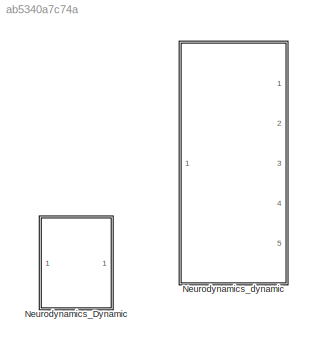
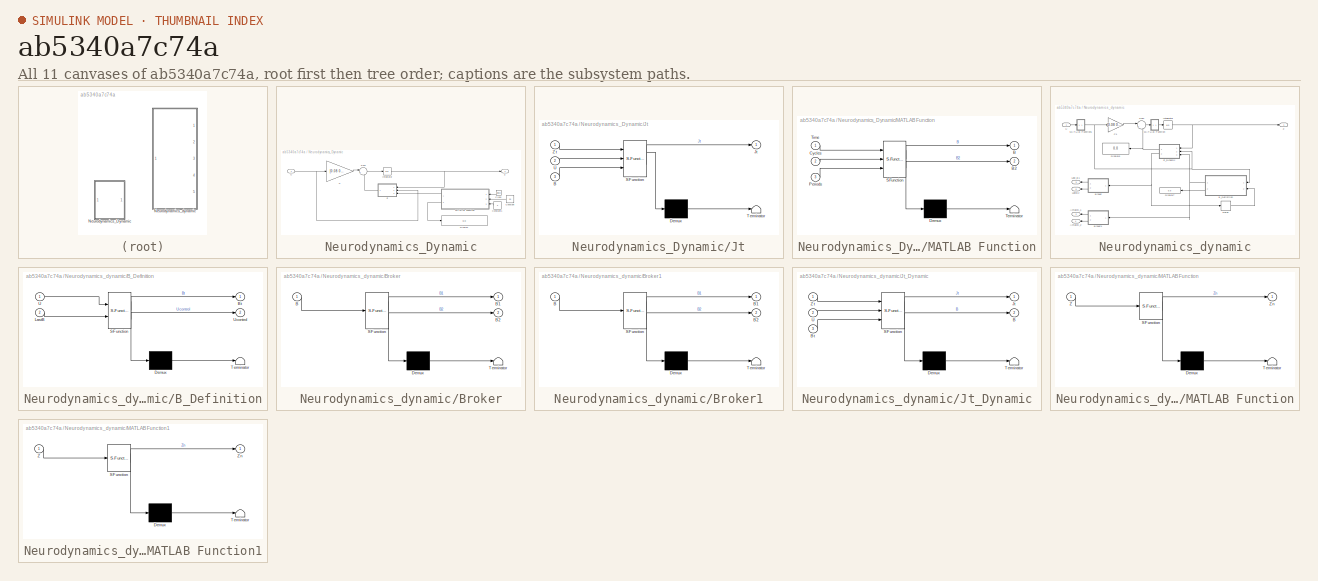
[diagram: thumbnail index - all 11 canvases of the model, root first then tree order]
MODEL slx_ab5340a7c74a
KIND model
CONFIG AbsTol = auto
CONFIG EnableMultiTasking = off
CONFIG FixedStep = auto
CONFIG MaxStep = auto
CONFIG MinStep = auto
CONFIG RelTol = 1e-3
CONFIG SampleTimeConstraint = Unconstrained
CONFIG SolverName = VariableStepAuto
CONFIG StartTime = 0.0
CONFIG StopTime = 10.0
BLOCK [SubSystem] Neurodynamics_Dynamic
  Commented = on
  Ports = [1, 1]
  RequestExecContextInheritance = off
BLOCK [Gain] Neurodynamics_Dynamic/C
  Gain = [0.08 0;0.06 0]
  Multiplication = Matrix(K*u) (u vector)
BLOCK [Clock] Neurodynamics_Dynamic/Clock
BLOCK [Constant] Neurodynamics_Dynamic/Constant
  Value = 30
BLOCK [Constant] Neurodynamics_Dynamic/Constant1
  Value = 2
BLOCK [Display] Neurodynamics_Dynamic/Display
  Decimation = 1
  Ports = [1]
BLOCK [Integrator] Neurodynamics_Dynamic/Integrator
  Ports = [1, 1]
BLOCK [SubSystem] Neurodynamics_Dynamic/Jt
  ErrorFcn = Stateflow.Translate.translate
  PermitHierarchicalResolution = ExplicitOnly
  Ports = [3, 1]
  RequestExecContextInheritance = off
  SFBlockType = MATLAB Function
  TreatAsAtomicUnit = on
BLOCK [Demux] Neurodynamics_Dynamic/Jt/ Demux 
  Outputs = 1
  Ports = [1, 1]
BLOCK [S-Function] Neurodynamics_Dynamic/Jt/ SFunction 
  EnableBusSupport = on
  FunctionName = sf_sfun
  PortCounts = [3 2]
  Ports = [3, 2]
  SFcnIsStateOwnerBlock = off
  SFunctionDeploymentMode = off
  Tag = Stateflow S-Function 13
BLOCK [Terminator] Neurodynamics_Dynamic/Jt/ Terminator 
BLOCK [Inport] Neurodynamics_Dynamic/Jt/B
  Port = 3
BLOCK [Outport] Neurodynamics_Dynamic/Jt/Jt
BLOCK [Inport] Neurodynamics_Dynamic/Jt/U
  Port = 2
BLOCK [Inport] Neurodynamics_Dynamic/Jt/Zt
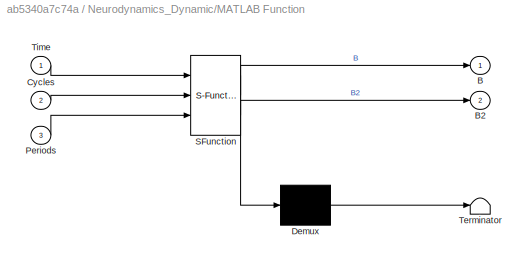
BLOCK [SubSystem] Neurodynamics_Dynamic/MATLAB Function
  ErrorFcn = Stateflow.Translate.translate
  PermitHierarchicalResolution = ExplicitOnly
  Ports = [3, 2]
  RequestExecContextInheritance = off
  SFBlockType = MATLAB Function
  TreatAsAtomicUnit = on
BLOCK [Demux] Neurodynamics_Dynamic/MATLAB Function/ Demux 
  Outputs = 1
  Ports = [1, 1]
BLOCK [S-Function] Neurodynamics_Dynamic/MATLAB Function/ SFunction 
  EnableBusSupport = on
  FunctionName = sf_sfun
  PortCounts = [3 3]
  Ports = [3, 3]
  SFcnIsStateOwnerBlock = off
  SFunctionDeploymentMode = off
  Tag = Stateflow S-Function 14
BLOCK [Terminator] Neurodynamics_Dynamic/MATLAB Function/ Terminator 
BLOCK [Outport] Neurodynamics_Dynamic/MATLAB Function/B
BLOCK [Outport] Neurodynamics_Dynamic/MATLAB Function/B2
  Port = 2
BLOCK [Inport] Neurodynamics_Dynamic/MATLAB Function/Cycles
  Port = 2
BLOCK [Inport] Neurodynamics_Dynamic/MATLAB Function/Periods
  Port = 3
BLOCK [Inport] Neurodynamics_Dynamic/MATLAB Function/Time
BLOCK [Sum] Neurodynamics_Dynamic/Sum
  Inputs = |++
  Ports = [2, 1]
BLOCK [Inport] Neurodynamics_Dynamic/U
BLOCK [Outport] Neurodynamics_Dynamic/Z
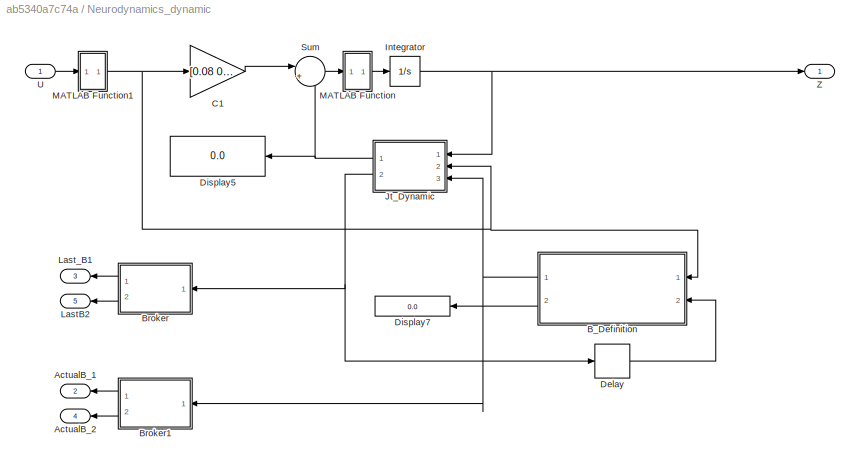
BLOCK [SubSystem] Neurodynamics_dynamic
  Commented = on
  Ports = [1, 5]
  RequestExecContextInheritance = off
BLOCK [Outport] Neurodynamics_dynamic/ActualB_1
  Port = 2
BLOCK [Outport] Neurodynamics_dynamic/ActualB_2
  Port = 4
BLOCK [SubSystem] Neurodynamics_dynamic/B_Definition
  ErrorFcn = Stateflow.Translate.translate
  PermitHierarchicalResolution = ExplicitOnly
  Ports = [2, 2]
  RequestExecContextInheritance = off
  SFBlockType = MATLAB Function
  TreatAsAtomicUnit = on
BLOCK [Demux] Neurodynamics_dynamic/B_Definition/ Demux 
  Outputs = 1
  Ports = [1, 1]
BLOCK [S-Function] Neurodynamics_dynamic/B_Definition/ SFunction 
  EnableBusSupport = on
  FunctionName = sf_sfun
  PortCounts = [2 3]
  Ports = [2, 3]
  SFcnIsStateOwnerBlock = off
  SFunctionDeploymentMode = off
  Tag = Stateflow S-Function 16
BLOCK [Terminator] Neurodynamics_dynamic/B_Definition/ Terminator 
BLOCK [Outport] Neurodynamics_dynamic/B_Definition/Bt
BLOCK [Inport] Neurodynamics_dynamic/B_Definition/LastB
  Port = 2
BLOCK [Inport] Neurodynamics_dynamic/B_Definition/U
BLOCK [Outport] Neurodynamics_dynamic/B_Definition/Ucontrol
  Port = 2
BLOCK [SubSystem] Neurodynamics_dynamic/Broker
  ErrorFcn = Stateflow.Translate.translate
  PermitHierarchicalResolution = ExplicitOnly
  Ports = [1, 2]
  RequestExecContextInheritance = off
  SFBlockType = MATLAB Function
  TreatAsAtomicUnit = on
BLOCK [Demux] Neurodynamics_dynamic/Broker/ Demux 
  Outputs = 1
  Ports = [1, 1]
BLOCK [S-Function] Neurodynamics_dynamic/Broker/ SFunction 
  EnableBusSupport = on
  FunctionName = sf_sfun
  PortCounts = [1 3]
  Ports = [1, 3]
  SFcnIsStateOwnerBlock = off
  SFunctionDeploymentMode = off
  Tag = Stateflow S-Function 17
BLOCK [Terminator] Neurodynamics_dynamic/Broker/ Terminator 
BLOCK [Inport] Neurodynamics_dynamic/Broker/B
BLOCK [Outport] Neurodynamics_dynamic/Broker/B1
BLOCK [Outport] Neurodynamics_dynamic/Broker/B2
  Port = 2
BLOCK [SubSystem] Neurodynamics_dynamic/Broker1
  ErrorFcn = Stateflow.Translate.translate
  PermitHierarchicalResolution = ExplicitOnly
  Ports = [1, 2]
  RequestExecContextInheritance = off
  SFBlockType = MATLAB Function
  TreatAsAtomicUnit = on
BLOCK [Demux] Neurodynamics_dynamic/Broker1/ Demux 
  Outputs = 1
  Ports = [1, 1]
BLOCK [S-Function] Neurodynamics_dynamic/Broker1/ SFunction 
  EnableBusSupport = on
  FunctionName = sf_sfun
  PortCounts = [1 3]
  Ports = [1, 3]
  SFcnIsStateOwnerBlock = off
  SFunctionDeploymentMode = off
  Tag = Stateflow S-Function 18
BLOCK [Terminator] Neurodynamics_dynamic/Broker1/ Terminator 
BLOCK [Inport] Neurodynamics_dynamic/Broker1/B
BLOCK [Outport] Neurodynamics_dynamic/Broker1/B1
BLOCK [Outport] Neurodynamics_dynamic/Broker1/B2
  Port = 2
BLOCK [Gain] Neurodynamics_dynamic/C1
  Gain = [0.08 0;0.06 0]
  Multiplication = Matrix(K*u) (u vector)
BLOCK [Delay] Neurodynamics_dynamic/Delay
  DelayLength = 1
  InitialCondition = 0
  InputPortMap = u0
  NameLocation = top
  Ports = [1, 1]
BLOCK [Display] Neurodynamics_dynamic/Display5
  Decimation = 1
  Ports = [1]
BLOCK [Display] Neurodynamics_dynamic/Display7
  Decimation = 1
  Ports = [1]
BLOCK [Integrator] Neurodynamics_dynamic/Integrator
  Ports = [1, 1]
BLOCK [SubSystem] Neurodynamics_dynamic/Jt_Dynamic
  ErrorFcn = Stateflow.Translate.translate
  PermitHierarchicalResolution = ExplicitOnly
  Ports = [3, 2]
  RequestExecContextInheritance = off
  SFBlockType = MATLAB Function
  TreatAsAtomicUnit = on
BLOCK [Demux] Neurodynamics_dynamic/Jt_Dynamic/ Demux 
  Outputs = 1
  Ports = [1, 1]
BLOCK [S-Function] Neurodynamics_dynamic/Jt_Dynamic/ SFunction 
  EnableBusSupport = on
  FunctionName = sf_sfun
  PortCounts = [3 3]
  Ports = [3, 3]
  SFcnIsStateOwnerBlock = off
  SFunctionDeploymentMode = off
  Tag = Stateflow S-Function 20
BLOCK [Terminator] Neurodynamics_dynamic/Jt_Dynamic/ Terminator 
BLOCK [Outport] Neurodynamics_dynamic/Jt_Dynamic/B
  Port = 2
BLOCK [Inport] Neurodynamics_dynamic/Jt_Dynamic/Bt
  Port = 3
BLOCK [Outport] Neurodynamics_dynamic/Jt_Dynamic/Jt
BLOCK [Inport] Neurodynamics_dynamic/Jt_Dynamic/U
  Port = 2
BLOCK [Inport] Neurodynamics_dynamic/Jt_Dynamic/Zt
BLOCK [Outport] Neurodynamics_dynamic/LastB2
  Port = 5
BLOCK [Outport] Neurodynamics_dynamic/Last_B1
  Port = 3
BLOCK [SubSystem] Neurodynamics_dynamic/MATLAB Function
  ErrorFcn = Stateflow.Translate.translate
  PermitHierarchicalResolution = ExplicitOnly
  Ports = [1, 1]
  RequestExecContextInheritance = off
  SFBlockType = MATLAB Function
  TreatAsAtomicUnit = on
BLOCK [Demux] Neurodynamics_dynamic/MATLAB Function/ Demux 
  Outputs = 1
  Ports = [1, 1]
BLOCK [S-Function] Neurodynamics_dynamic/MATLAB Function/ SFunction 
  EnableBusSupport = on
  FunctionName = sf_sfun
  PortCounts = [1 2]
  Ports = [1, 2]
  SFcnIsStateOwnerBlock = off
  SFunctionDeploymentMode = off
  Tag = Stateflow S-Function 21
BLOCK [Terminator] Neurodynamics_dynamic/MATLAB Function/ Terminator 
BLOCK [Inport] Neurodynamics_dynamic/MATLAB Function/Z
BLOCK [Outport] Neurodynamics_dynamic/MATLAB Function/Zn
BLOCK [SubSystem] Neurodynamics_dynamic/MATLAB Function1
  ErrorFcn = Stateflow.Translate.translate
  PermitHierarchicalResolution = ExplicitOnly
  Ports = [1, 1]
  RequestExecContextInheritance = off
  SFBlockType = MATLAB Function
  TreatAsAtomicUnit = on
BLOCK [Demux] Neurodynamics_dynamic/MATLAB Function1/ Demux 
  Outputs = 1
  Ports = [1, 1]
BLOCK [S-Function] Neurodynamics_dynamic/MATLAB Function1/ SFunction 
  EnableBusSupport = on
  FunctionName = sf_sfun
  PortCounts = [1 2]
  Ports = [1, 2]
  SFcnIsStateOwnerBlock = off
  SFunctionDeploymentMode = off
  Tag = Stateflow S-Function 22
BLOCK [Terminator] Neurodynamics_dynamic/MATLAB Function1/ Terminator 
BLOCK [Inport] Neurodynamics_dynamic/MATLAB Function1/Z
BLOCK [Outport] Neurodynamics_dynamic/MATLAB Function1/Zn
BLOCK [Sum] Neurodynamics_dynamic/Sum
  Inputs = |++
  Ports = [2, 1]
BLOCK [Inport] Neurodynamics_dynamic/U
BLOCK [Outport] Neurodynamics_dynamic/Z
LINE Neurodynamics_Dynamic/C:1 -> Neurodynamics_Dynamic/Sum:1
LINE Neurodynamics_Dynamic/Clock:1 -> Neurodynamics_Dynamic/MATLAB Function:1
LINE Neurodynamics_Dynamic/Constant1:1 -> Neurodynamics_Dynamic/MATLAB Function:3
LINE Neurodynamics_Dynamic/Constant:1 -> Neurodynamics_Dynamic/MATLAB Function:2
NET Neurodynamics_Dynamic/Integrator:1 -> Neurodynamics_Dynamic/Jt:1, Neurodynamics_Dynamic/Z:1
LINE Neurodynamics_Dynamic/Jt:1 -> Neurodynamics_Dynamic/Sum:2
LINE Neurodynamics_Dynamic/MATLAB Function:1 -> Neurodynamics_Dynamic/Jt:3
LINE Neurodynamics_Dynamic/MATLAB Function:2 -> Neurodynamics_Dynamic/Display:1
LINE Neurodynamics_Dynamic/Sum:1 -> Neurodynamics_Dynamic/Integrator:1
NET Neurodynamics_Dynamic/U:1 -> Neurodynamics_Dynamic/C:1, Neurodynamics_Dynamic/Jt:2
NET Neurodynamics_dynamic/B_Definition:1 -> Neurodynamics_dynamic/Broker1:1, Neurodynamics_dynamic/Jt_Dynamic:3
LINE Neurodynamics_dynamic/B_Definition:2 -> Neurodynamics_dynamic/Display7:1
LINE Neurodynamics_dynamic/Broker1:1 -> Neurodynamics_dynamic/ActualB_1:1
LINE Neurodynamics_dynamic/Broker1:2 -> Neurodynamics_dynamic/ActualB_2:1
LINE Neurodynamics_dynamic/Broker:1 -> Neurodynamics_dynamic/Last_B1:1
LINE Neurodynamics_dynamic/Broker:2 -> Neurodynamics_dynamic/LastB2:1
LINE Neurodynamics_dynamic/C1:1 -> Neurodynamics_dynamic/Sum:1
LINE Neurodynamics_dynamic/Delay:1 -> Neurodynamics_dynamic/B_Definition:2
NET Neurodynamics_dynamic/Integrator:1 -> Neurodynamics_dynamic/Jt_Dynamic:1, Neurodynamics_dynamic/Z:1
NET Neurodynamics_dynamic/Jt_Dynamic:1 -> Neurodynamics_dynamic/Display5:1, Neurodynamics_dynamic/Sum:2
NET Neurodynamics_dynamic/Jt_Dynamic:2 -> Neurodynamics_dynamic/Broker:1, Neurodynamics_dynamic/Delay:1
NET Neurodynamics_dynamic/MATLAB Function1:1 -> Neurodynamics_dynamic/B_Definition:1, Neurodynamics_dynamic/C1:1, Neurodynamics_dynamic/Jt_Dynamic:2
LINE Neurodynamics_dynamic/MATLAB Function:1 -> Neurodynamics_dynamic/Integrator:1
LINE Neurodynamics_dynamic/Sum:1 -> Neurodynamics_dynamic/MATLAB Function:1
LINE Neurodynamics_dynamic/U:1 -> Neurodynamics_dynamic/MATLAB Function1:1
note: NET lines group one-source signal fan-out (src -> all destinations, sorted); 1:1 wires keep LINE
CHART Neurodynamics_Dynamic/Jt states=1 transitions=1
  STATE_LABEL 'eML_blk_kernel()'
  STATE_LABEL 'SCRIPT:\nfunction Jt = fcn(Zt, U,B)\n   A = [-0.16 -0.49;-0.02 -0.33];\n   nRegions  = size(A,1);\n   M = size(U,1); %nStimuli\n   simulationLength = size(U,2);\n%    B = zeros(2,2,2);\n%    B1 = [0 0; 0 0]; %There must be a B per stimulus\n%    %B2_3\n%    B2 = [-0.67 -0.91 ;-0.3 -1.21];\n%    %B2_2\n%    %B2 = [-0.08 -1.08; 1.2054 -0.0076];\n%    %B2_1\n%    %B2 = [-0.02 -0.07; 0.33 -1.31];\n%    B(:,:,1) = B...<+416ch>'
CHART Neurodynamics_Dynamic/MATLAB Function states=1 transitions=1
  STATE_LABEL 'eML_blk_kernel()'
  STATE_LABEL 'SCRIPT:\nfunction [B, B2] = ControlledDynamic_B(Time, Cycles, Periods)\n\n   B = zeros(2,2,2);\n   %B1 = [0 0; 0 0]; %There must be a B per stimulus\n   %B2_3\n   %B2 = [-0.67 -0.91 ;-0.3 -1.21];\n   %B2_2\n   %B2 = [-0.08 -1.08; 1.2054 -0.0076];\n   %B2_1\n   %B2 = [-0.02 -0.07; 0.33 -1.31];\n   PCycles = zeros(6,1);\n   for i = 1:Periods\n       PCycles(i) = i * Cycles;   \n   end\n   %random_selector = randi(...<+720ch>'
CHART Neurodynamics_dynamic/B_Definition states=1 transitions=1
  STATE_LABEL 'eML_blk_kernel()'
  STATE_LABEL 'SCRIPT:\nfunction [Bt, Ucontrol] = B_Definition(U, LastB)\n   Bt = zeros(2, 2, 2);\n   %Control extraction and weight\n   Ucontrol = U(2) * (0.2 + rand(1) * (1-0.2));\n   Threshold = 0.2;\n    if(Ucontrol < Threshold) %Random Ucontrol to test\n        min = -1; \n        max = 1.5;\n        n = 2;\n        r1 = min + rand(n)*(max-min);\n        r2 = min + rand(n)*(max-min);\n        %Bt(:,:,1) = r1(:,:);\n    ...<+68ch>'
CHART Neurodynamics_dynamic/Broker states=1 transitions=1
  STATE_LABEL 'eML_blk_kernel()'
  STATE_LABEL 'SCRIPT:\nfunction [B1, B2] = fcn(B)\nB1 = B(:,:,1);\nB2 = B(:,:,2);'
CHART Neurodynamics_dynamic/Broker1 states=1 transitions=1
  STATE_LABEL 'eML_blk_kernel()'
  STATE_LABEL 'SCRIPT:\nfunction [B1, B2] = fcn(B)\nB1 = B(:,:,1);\nB2 = B(:,:,2);'
CHART Neurodynamics_dynamic/Jt_Dynamic states=1 transitions=1
  STATE_LABEL 'eML_blk_kernel()'
  STATE_LABEL 'SCRIPT:\nfunction [Jt, B] = fcn(Zt, U, Bt)\n\n   A = [-0.16 -0.49;-0.02 -0.33];\n   nRegions  = size(A,1);\n\n   B = zeros(2,2,2);\n   a = 0;\n   B1 = [0 0; 0 0]; %There must be a B per stimulus\n   B2 = [-0.02 -0.77; 0.33 -1.31];\n\n   if Bt(:,:,2) ~= B(:,:,2)\n       B(:,:,:) = Bt(:,:,:);\n   else\n          B(:,:,1) = B1;\n          B(:,:,2) = B2;\n   end\n   M = size(U,1); %nStimuli\n   assert(M == size(B,3),.....<+453ch>'
CHART Neurodynamics_dynamic/MATLAB Function states=1 transitions=1
  STATE_LABEL 'eML_blk_kernel()'
  STATE_LABEL 'SCRIPT:\nfunction Zn = fcn(Z)\n\nZn = Z(:,1);\n'
CHART Neurodynamics_dynamic/MATLAB Function1 states=1 transitions=1
  STATE_LABEL 'eML_blk_kernel()'
  STATE_LABEL 'SCRIPT:\nfunction Zn = fcn(Z)\n\nZn = Z(:,1);\n'
CHART  states=0 transitions=0
CHART  states=0 transitions=0
CHART  states=0 transitions=0
CHART  states=0 transitions=0
CHART  states=0 transitions=0
CHART  states=0 transitions=0
CHART  states=0 transitions=0
CHART  states=0 transitions=0
